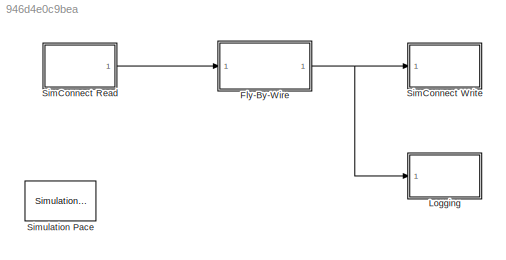
MODEL slx_946d4e0c9bea
KIND model
CONFIG AbsTol = auto
CONFIG EnableMultiTasking = off
CONFIG FixedStep = auto
CONFIG MaxStep = auto
CONFIG MinStep = auto
CONFIG RelTol = 1e-3
CONFIG SampleTimeConstraint = Unconstrained
CONFIG SolverName = FixedStepAuto
CONFIG StartTime = 0.0
CONFIG StopTime = inf
BLOCK [ModelReference] Fly-By-Wire
  ModelNameDialog = fbw
  ModelReferenceVersion = 1.26
  Ports = [1, 1]
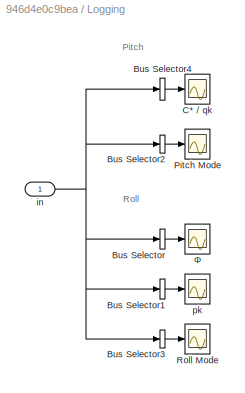
BLOCK [SubSystem] Logging
  Ports = [1]
  RequestExecContextInheritance = off
BLOCK [BusSelector] Logging/Bus Selector
  OutputAsBus = on
  OutputSignals = roll.roll:normal.Phi_c_deg,sim.sim:data.Phi_deg
  Ports = [1, 1]
BLOCK [BusSelector] Logging/Bus Selector1
  OutputAsBus = on
  OutputSignals = roll.roll:normal.pk_c_deg_s,sim.sim:data.pk_deg_s
  Ports = [1, 1]
BLOCK [BusSelector] Logging/Bus Selector2
  OutputAsBus = on
  OutputSignals = sim.sim:data:computed.on_ground,pitch.pitch:data:computed.in_flight,pitch.pitch:data:computed.in_flare,pitch.pitch:data:computed.in_flight_gain
  Ports = [1, 1]
BLOCK [BusSelector] Logging/Bus Selector3
  OutputAsBus = on
  OutputSignals = sim.sim:data:computed.on_ground,roll.roll:data:computed.in_flight,roll.roll:data:computed.in_flight_gain
  Ports = [1, 1]
BLOCK [BusSelector] Logging/Bus Selector4
  OutputAsBus = on
  OutputSignals = pitch.pitch:normal.Cstar_c_g,pitch.pitch:normal.Cstar_g,sim.sim:data.nz_g,sim.sim:data.qk_deg_s
  Ports = [1, 1]
BLOCK [Scope] Logging/C* // qk
  Floating = off
  NumInputPorts = 1
  Ports = [1]
  ScopeSpecificationString = Simulink.scopes.TimeScopeBlockCfg('CurrentConfiguration', extmgr.ConfigurationSet(extmgr.Configuration('Core','General UI',true),extmgr.Configuration('Core','Source UI',true),extmgr.Configuration('Sources','WiredSimulink',true,'DataLoggingVariableName','ScopeData1'),extmgr.Configuration('Visuals','Time Domain',true,'SerializedDisplays',{struct('MinYLimReal','-0.5','MaxYLimReal','1.5','YLabelReal',...<+1984ch>
BLOCK [Scope] Logging/Pitch Mode
  Floating = off
  NumInputPorts = 1
  Ports = [1]
  ScopeSpecificationString = Simulink.scopes.TimeScopeBlockCfg('CurrentConfiguration', extmgr.ConfigurationSet(extmgr.Configuration('Core','General UI',true),extmgr.Configuration('Core','Source UI',true),extmgr.Configuration('Sources','WiredSimulink',true,'DataLoggingVariableName','ScopeData1'),extmgr.Configuration('Visuals','Time Domain',true,'SerializedDisplays',{struct('MinYLimReal','-0.5','MaxYLimReal','1.5','YLabelReal',...<+1984ch>
BLOCK [Scope] Logging/Roll Mode
  Floating = off
  NumInputPorts = 1
  Ports = [1]
  ScopeSpecificationString = Simulink.scopes.TimeScopeBlockCfg('CurrentConfiguration', extmgr.ConfigurationSet(extmgr.Configuration('Core','General UI',true),extmgr.Configuration('Core','Source UI',true),extmgr.Configuration('Sources','WiredSimulink',true,'DataLoggingVariableName','ScopeData2'),extmgr.Configuration('Visuals','Time Domain',true,'SerializedDisplays',{struct('MinYLimReal','-0.5','MaxYLimReal','1.5','YLabelReal',...<+1966ch>
BLOCK [Inport] Logging/in
BLOCK [Scope] Logging/pk
  Floating = off
  NumInputPorts = 1
  Ports = [1]
  ScopeSpecificationString = Simulink.scopes.TimeScopeBlockCfg('CurrentConfiguration', extmgr.ConfigurationSet(extmgr.Configuration('Core','General UI',true),extmgr.Configuration('Core','Source UI',true),extmgr.Configuration('Sources','WiredSimulink',true,'DataLoggingVariableName','ScopeData2'),extmgr.Configuration('Visuals','Time Domain',true,'SerializedDisplays',{struct('MinYLimReal','-17.00000','MaxYLimReal','17.00000','YL...<+1617ch>
BLOCK [Scope] Logging/Φ
  Floating = off
  NumInputPorts = 1
  Ports = [1]
  ScopeSpecificationString = Simulink.scopes.TimeScopeBlockCfg('CurrentConfiguration', extmgr.ConfigurationSet(extmgr.Configuration('Core','General UI',true),extmgr.Configuration('Core','Source UI',true),extmgr.Configuration('Sources','WiredSimulink',true),extmgr.Configuration('Visuals','Time Domain',true,'SerializedDisplays',{struct('MinYLimReal','-70.00000','MaxYLimReal','70.00000','YLabelReal','\Phi','MinYLimMag','0.00000'...<+1557ch>
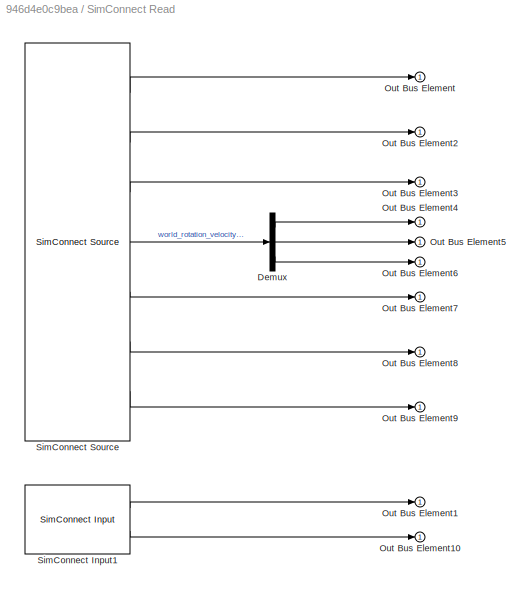
BLOCK [SubSystem] SimConnect Read
  Ports = [0, 1]
  RequestExecContextInheritance = off
BLOCK [Demux] SimConnect Read/Demux
  Outputs = 3
  Ports = [1, 3]
BLOCK [Outport] SimConnect Read/Out Bus Element
BLOCK [Outport] SimConnect Read/Out Bus Element1
BLOCK [Outport] SimConnect Read/Out Bus Element10
BLOCK [Outport] SimConnect Read/Out Bus Element2
BLOCK [Outport] SimConnect Read/Out Bus Element3
BLOCK [Outport] SimConnect Read/Out Bus Element4
BLOCK [Outport] SimConnect Read/Out Bus Element5
BLOCK [Outport] SimConnect Read/Out Bus Element6
BLOCK [Outport] SimConnect Read/Out Bus Element7
BLOCK [Outport] SimConnect Read/Out Bus Element8
BLOCK [Outport] SimConnect Read/Out Bus Element9
BLOCK [Reference] SimConnect Read/SimConnect Input1  REF=SimConnectToolbox/SimConnect Input
  Ports = [0, 2]
  SourceBlock = SimConnectToolbox/SimConnect Input
  SourceProductName = SimConnect Toolbox
BLOCK [Reference] SimConnect Read/SimConnect Source  REF=SimConnectToolbox/SimConnect Source
  Ports = [0, 7]
  SourceBlock = SimConnectToolbox/SimConnect Source
  SourceProductName = SimConnect Toolbox
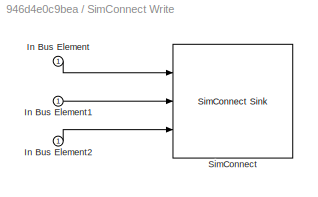
BLOCK [SubSystem] SimConnect Write
  Ports = [1]
  RequestExecContextInheritance = off
BLOCK [Inport] SimConnect Write/In Bus Element
BLOCK [Inport] SimConnect Write/In Bus Element1
BLOCK [Inport] SimConnect Write/In Bus Element2
BLOCK [Reference] SimConnect Write/SimConnect  REF=SimConnectToolbox/SimConnect Sink
  Ports = [3]
  SourceBlock = SimConnectToolbox/SimConnect Sink
  SourceProductName = SimConnect Toolbox
BLOCK [Reference] Simulation Pace  REF=aerolibanimutils/Simulation Pace
  AttributesFormatString = %<SampleTime>
  Ports = []
  SourceBlock = aerolibanimutils/Simulation Pace
  SourceProductBaseCode = AE
  SourceType = Simulation Pace
ANNOTATION Logging: Pitch
ANNOTATION Logging: Roll
NET Fly-By-Wire:1 -> Logging:1, SimConnect Write:1
LINE Logging/Bus Selector1:1 -> Logging/pk:1
LINE Logging/Bus Selector2:1 -> Logging/Pitch Mode:1
LINE Logging/Bus Selector3:1 -> Logging/Roll Mode:1
LINE Logging/Bus Selector4:1 -> Logging/C* // qk:1
LINE Logging/Bus Selector:1 -> Logging/Φ:1
NET Logging/in:1 -> Logging/Bus Selector1:1, Logging/Bus Selector2:1, Logging/Bus Selector3:1, Logging/Bus Selector4:1, Logging/Bus Selector:1
LINE SimConnect Read/Demux:1 -> SimConnect Read/Out Bus Element4:1
LINE SimConnect Read/Demux:2 -> SimConnect Read/Out Bus Element5:1
LINE SimConnect Read/Demux:3 -> SimConnect Read/Out Bus Element6:1
LINE SimConnect Read/SimConnect Input1:1 -> SimConnect Read/Out Bus Element1:1
LINE SimConnect Read/SimConnect Input1:2 -> SimConnect Read/Out Bus Element10:1
LINE SimConnect Read/SimConnect Source:1 -> SimConnect Read/Out Bus Element:1
LINE SimConnect Read/SimConnect Source:2 -> SimConnect Read/Out Bus Element2:1
LINE SimConnect Read/SimConnect Source:3 -> SimConnect Read/Out Bus Element3:1
LINE SimConnect Read/SimConnect Source:4 -> SimConnect Read/Demux:1
LINE SimConnect Read/SimConnect Source:5 -> SimConnect Read/Out Bus Element7:1
LINE SimConnect Read/SimConnect Source:6 -> SimConnect Read/Out Bus Element8:1
LINE SimConnect Read/SimConnect Source:7 -> SimConnect Read/Out Bus Element9:1
LINE SimConnect Read:1 -> Fly-By-Wire:1
LINE SimConnect Write/In Bus Element1:1 -> SimConnect Write/SimConnect:2
LINE SimConnect Write/In Bus Element2:1 -> SimConnect Write/SimConnect:3
LINE SimConnect Write/In Bus Element:1 -> SimConnect Write/SimConnect:1
note: NET lines group one-source signal fan-out (src -> all destinations, sorted); 1:1 wires keep LINE
